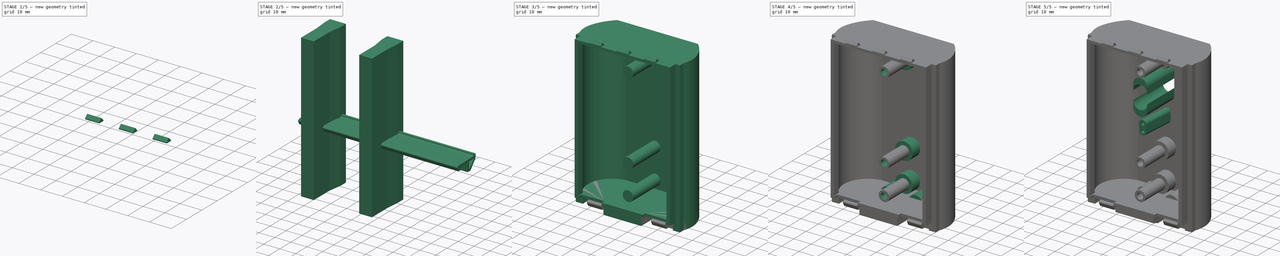
[diagram: build sequence overview — one tinted view per stage of 5, left to right]
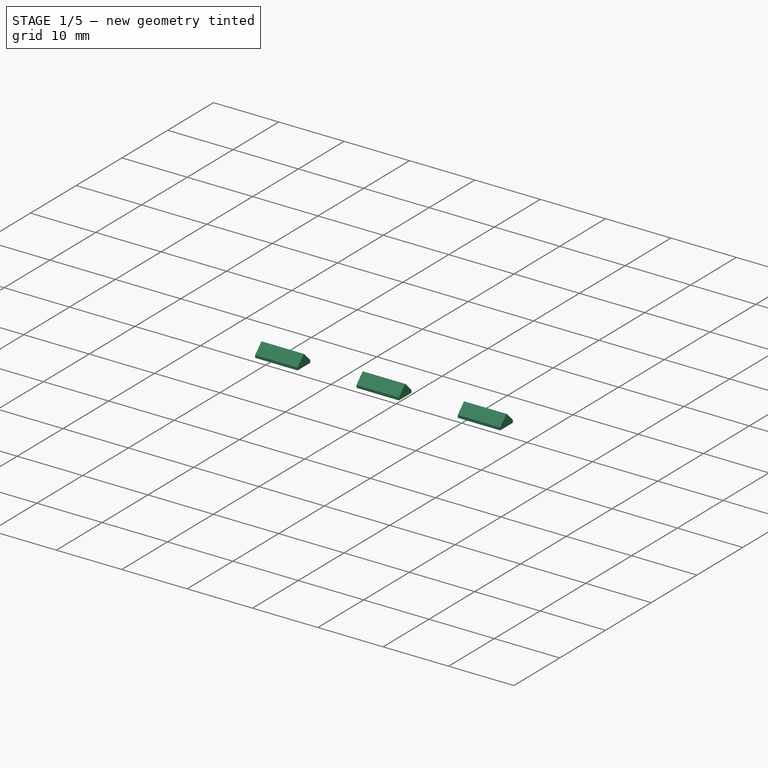
[diagram: stage 1 of 5 — iso view after this stage's code; geometry added in this stage tinted green]
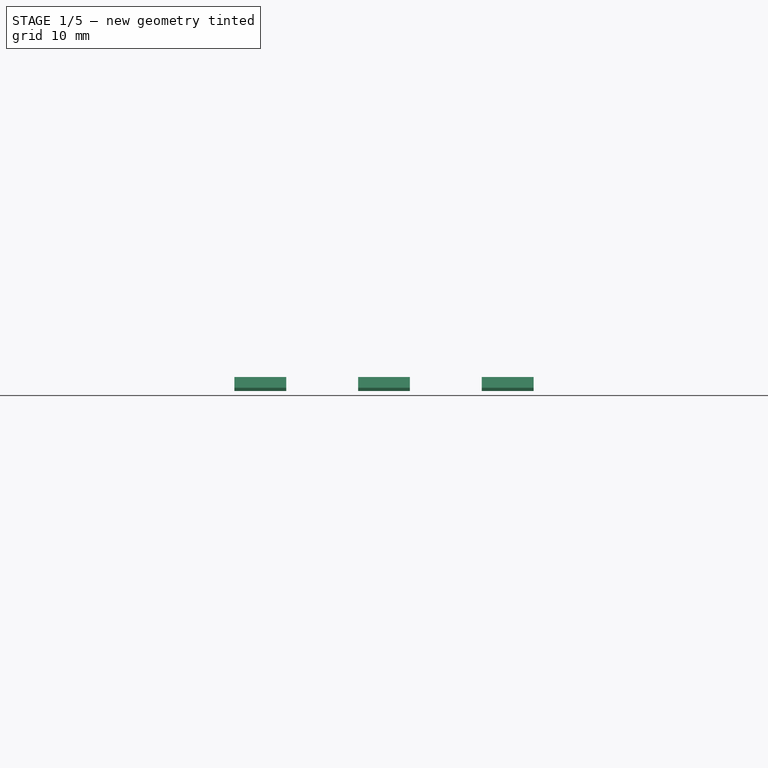
[diagram: stage 1 of 5 — front view after this stage's code; geometry added in this stage tinted green]
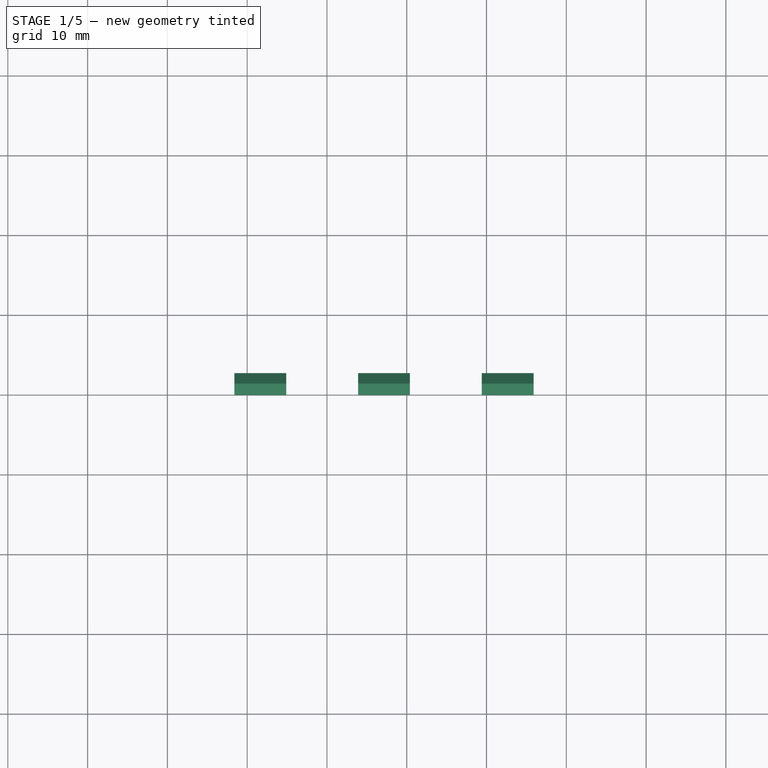
[diagram: stage 1 of 5 — top view after this stage's code; geometry added in this stage tinted green]
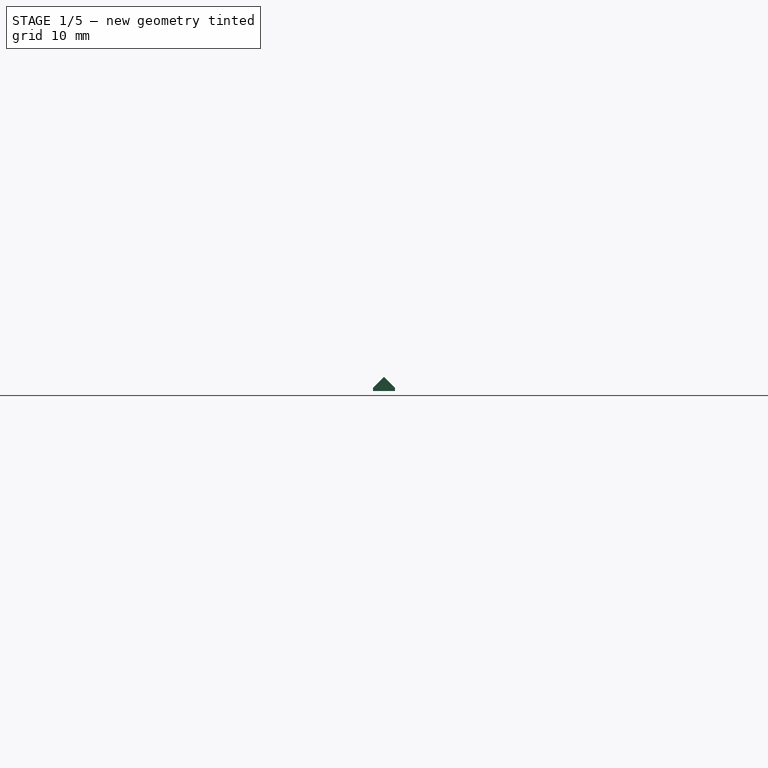
[diagram: stage 1 of 5 — right view after this stage's code; geometry added in this stage tinted green]
FCSTD DOCUMENT  (FreeCAD 0.19R24291 (Git))
Label: VX8PrintedCase
License: All rights reserved
LicenseURL: http://en.wikipedia.org/wiki/All_rights_reserved
objects: Sketcher::SketchObject×14, Part::Extrusion×6, PartDesign::Pad×6, Part::Fuse×4, PartDesign::Line×4, PartDesign::Hole×3, PartDesign::Pocket×2, Part::Chamfer×1, Part::MultiCommon×1, PartDesign::FeatureBase×1, PartDesign::Plane×1, PartDesign::Chamfer×1, PartDesign::Body×1, App::Part×1
note: 57 computed .brp shape members not serialized (recipe doc carries the construction recipe); baked Part::Feature solids carry a one-line shape summary decoded from their .brp

FEATURE [Sketcher::SketchObject] Sketch012
  FullyConstrained = true
  sketch-geometry (23):
    g0: GeomPoint X=27.15 Y=-0.0116512 Z=0
    g1: GeomPoint X=54.3 Y=-0.0233024 Z=0
    g2: Circle CenterX=12.15 CenterY=13.1 CenterZ=0 NormalX=0 NormalY=0 NormalZ=1 AngleXU=0 Radius=11.6
    g3: Circle CenterX=42.15 CenterY=13.1 CenterZ=0 NormalX=0 NormalY=0 NormalZ=1 AngleXU=0 Radius=11.6
    g4: LineSegment StartX=27.15 StartY=-0.0116512 StartZ=0 EndX=27.15 EndY=49.0884 EndZ=0
    g5: LineSegment StartX=0 StartY=0 StartZ=0 EndX=0 EndY=4.5 EndZ=0
    g6: LineSegment StartX=54.3 StartY=-0.0233024 StartZ=0 EndX=54.3 EndY=4.4767 EndZ=0
    g7: LineSegment StartX=0 StartY=4.5 StartZ=0 EndX=-2.5 EndY=4.5 EndZ=0
    g8: LineSegment StartX=54.3 StartY=4.4767 StartZ=0 EndX=56.8 EndY=4.4767 EndZ=0
    g9: LineSegment StartX=-2.5 StartY=4.5 StartZ=0 EndX=-2.5 EndY=7.5 EndZ=0
    g10: LineSegment StartX=56.8 StartY=4.4767 StartZ=0 EndX=56.8 EndY=7.5 EndZ=0
    g11: LineSegment StartX=0 StartY=0 StartZ=0 EndX=2 EndY=0 EndZ=0
    g12: LineSegment StartX=2 StartY=0 StartZ=0 EndX=2 EndY=3.75 EndZ=0
    g13: LineSegment StartX=54.3 StartY=-0.0233024 StartZ=0 EndX=52.3 EndY=0 EndZ=0
    g14: LineSegment StartX=52.3 StartY=0 StartZ=0 EndX=52.3 EndY=3.75 EndZ=0
    g15: LineSegment StartX=10.4902 StartY=26.8 StartZ=0 EndX=43.8098 EndY=26.8 EndZ=0
    g16: ArcOfCircle CenterX=42.15 CenterY=13.1 CenterZ=0 NormalX=0 NormalY=0 NormalZ=1 AngleXU=0 Radius=13.8002 StartAngle=5.53879 EndAngle=7.73341
    g17: ArcOfCircle CenterX=42.15 CenterY=13.1 CenterZ=0 NormalX=0 NormalY=0 NormalZ=1 AngleXU=0 Radius=15.6838 StartAngle=5.91807 EndAngle=6.53449
    g18: ArcOfCircle CenterX=12.15 CenterY=13.1 CenterZ=0 NormalX=0 NormalY=0 NormalZ=1 AngleXU=0 Radius=13.8002 StartAngle=1.69136 EndAngle=3.88599
    g19: ArcOfCircle CenterX=12.15 CenterY=13.1 CenterZ=0 NormalX=0 NormalY=0 NormalZ=1 AngleXU=0 Radius=15.6838 StartAngle=2.89029 EndAngle=3.50671
    g20: ArcOfCircle CenterX=21.55 CenterY=9.98835 CenterZ=0 NormalX=0 NormalY=0 NormalZ=1 AngleXU=0 Radius=25.5713 StartAngle=2.31496 EndAngle=2.86383
    g21: ArcOfCircle CenterX=32.75 CenterY=9.98835 CenterZ=0 NormalX=0 NormalY=0 NormalZ=1 AngleXU=0 Radius=25.5713 StartAngle=0.277758 EndAngle=0.826634
    g22: LineSegment StartX=4.22914 StartY=28.8 StartZ=0 EndX=50.0709 EndY=28.8 EndZ=0
  constraints (63):
    c: Symmetric(g1,g-1,g0)
    c: Radius(g2) = 11.6
    c: Equal(g2,g3)
    c: Coincident(g4,g0)
    c: Symmetric(g2,g3,g4)
    c: DistanceX(g2,g3) = 30
    c: DistanceY(g-1,g2) = 13.1
    c: Block(g4)
    c: PointOnObject(g5,g-2)
    c: Coincident(g5,g-1)
    c: Coincident(g6,g1)
    c: Vertical(g6)
    c: DistanceY(g5,g5) = 4.5
    c: Equal(g6,g5)
    c: Coincident(g7,g5)
    c: Horizontal(g7)
    c: DistanceX(g7,g7) = 2.5
    c: Coincident(g8,g6)
    c: Horizontal(g8)
    c: DistanceX(g8,g8) = 2.5
    c: Vertical(g7,g9)
    c: Vertical(g8,g10)
    c: Horizontal(g9,g10)
    c: Coincident(g9,g7)
    c: Coincident(g10,g8)
    c: DistanceY(g9,g9) = 3
    c: Coincident(g5,g11)
    c: PointOnObject(g11,g-1)
    c: Coincident(g11,g12)
    c: Vertical(g12)
    c: DistanceX(g5,g11) = 2
    c: Coincident(g6,g13)
    c: PointOnObject(g13,g-1)
    c: Coincident(g13,g14)
    c: Vertical(g14)
    c: Horizontal(g12,g14)
    c: DistanceY(g14,g14) = 3.75
    c: DistanceX(g11,g13) = 50.3
    c: Coincident(g16,g14)
    c: Coincident(g15,g16)
    c: Coincident(g17,g16)
    c: Coincident(g17,g10)
    c: Coincident(g18,g12)
    c: Coincident(g18,g15)
    c: Coincident(g19,g18)
    c: Coincident(g19,g9)
    c: Symmetric(g18,g16,g4)
    c: Coincident(g20,g19)
    c: Coincident(g22,g20)
    c: Coincident(g22,g21)
    c: Symmetric(g20,g21,g4)
    c: Coincident(g18,g2)
    c: Symmetric(g20,g21,g4)
    c: Symmetric(g15,g15,g4)
    c: DistanceY(g17) = 17
    c: DistanceY(g15,g20) = 2
    c: DistanceX(g4,g4) = 3.2e-15
    c: DistanceX(g20,g0) = 5.6
    c: DistanceY(g0,g20) = 10
    c: DistanceY(g5,g19) = 17
    c: Coincident(g21,g17)
    c: Distance(g5,g6) = 54.3
    c: DistanceY(g5,g15) = 26.8
FEATURE [Part::Extrusion] Extrude008
  Base = -> Sketch012
  Dir = (0,0,1)
  DirMode = 2
  FaceMakerClass = Part::FaceMakerBullseye
  LengthFwd = 80
  LengthRev = 0
  Solid = true
  Symmetric = false
FEATURE [Sketcher::SketchObject] Sketch013
  ExternalGeometry = -> [Extrude008]
  FullyConstrained = true
  MapMode = 5
  Placement = pos=(0,0,80) rot=(0,0,1;0rad)
  Support = -> [Extrude008]
  sketch-geometry (12):
    g0: LineSegment StartX=-2.5 StartY=7.5 StartZ=0 EndX=-2.5 EndY=4.5 EndZ=0
    g1: LineSegment StartX=-2.5 StartY=4.5 StartZ=0 EndX=0 EndY=4.5 EndZ=0
    g2: LineSegment StartX=0 StartY=4.5 StartZ=0 EndX=0 EndY=0 EndZ=0
    g3: LineSegment StartX=0 StartY=0 StartZ=0 EndX=54.3 EndY=-0.0233024 EndZ=0
    g4: LineSegment StartX=54.3 StartY=-0.0233024 StartZ=0 EndX=54.3 EndY=4.4767 EndZ=0
    g5: LineSegment StartX=54.3 StartY=4.4767 StartZ=0 EndX=56.8 EndY=4.4767 EndZ=0
    g6: LineSegment StartX=56.8 StartY=4.4767 StartZ=0 EndX=56.8 EndY=7.5 EndZ=0
    g7: LineSegment StartX=50.0709 StartY=28.8 StartZ=0 EndX=4.22914 EndY=28.8 EndZ=0
    g8: ArcOfCircle CenterX=12.15 CenterY=13.1 CenterZ=0 NormalX=0 NormalY=0 NormalZ=1 AngleXU=0 Radius=15.6838 StartAngle=2.89029 EndAngle=3.50671
    g9: ArcOfCircle CenterX=42.15 CenterY=13.1 CenterZ=0 NormalX=0 NormalY=0 NormalZ=1 AngleXU=0 Radius=15.6838 StartAngle=5.91807 EndAngle=6.53449
    g10: ArcOfCircle CenterX=32.75 CenterY=9.98835 CenterZ=0 NormalX=0 NormalY=0 NormalZ=1 AngleXU=0 Radius=25.5713 StartAngle=0.277758 EndAngle=0.826634
    g11: ArcOfCircle CenterX=21.55 CenterY=9.98835 CenterZ=0 NormalX=0 NormalY=0 NormalZ=1 AngleXU=0 Radius=25.5713 StartAngle=2.31496 EndAngle=2.86383
  constraints (28):
    c: Coincident(g-11,g0)
    c: Coincident(g0,g-12)
    c: Coincident(g0,g1)
    c: Coincident(g1,g-13)
    c: Coincident(g1,g2)
    c: Coincident(g2,g-1)
    c: Coincident(g2,g3)
    c: Coincident(g3,g-9)
    c: Coincident(g3,g4)
    c: Coincident(g4,g-9)
    c: Coincident(g4,g5)
    c: Coincident(g5,g-8)
    c: Coincident(g5,g6)
    c: Coincident(g6,g-7)
    c: Coincident(g-5,g7)
    c: Coincident(g7,g-4)
    c: Coincident(g8,g-10)
    c: Coincident(g8,g0)
    c: Coincident(g8,g-10)
    c: Coincident(g9,g-6)
    c: Coincident(g9,g6)
    c: Coincident(g9,g-6)
    c: Coincident(g10,g-5)
    c: Coincident(g10,g9)
    c: Coincident(g10,g7)
    c: Coincident(g11,g-3)
    c: Coincident(g11,g8)
    c: Coincident(g11,g7)
FEATURE [Part::Extrusion] Extrude009
  Base = -> Sketch013
  Dir = (0,0,1)
  DirMode = 2
  FaceMakerClass = Part::FaceMakerBullseye
  LengthFwd = 0
  LengthRev = 1.5
  Solid = true
  Symmetric = false
FEATURE [Part::Fuse] Fusion004
  Base = -> Extrude008
  Tool = -> Extrude009
FEATURE [Sketcher::SketchObject] Sketch014
  ExternalGeometry = -> [Fusion004]
  FullyConstrained = true
  MapMode = 5
  Placement = pos=(0,0,80) rot=(0,0,1;0rad)
  Support = -> [Fusion004]
  sketch-geometry (15):
    g0: GeomPoint X=27.15 Y=0 Z=0
    g1: LineSegment StartX=23.9 StartY=0 StartZ=0 EndX=30.4 EndY=0 EndZ=0
    g2: LineSegment StartX=30.4 StartY=0 StartZ=0 EndX=30.4 EndY=2.75 EndZ=0
    g3: LineSegment StartX=30.4 StartY=2.75 StartZ=0 EndX=23.9 EndY=2.75 EndZ=0
    g4: LineSegment StartX=23.9 StartY=2.75 StartZ=0 EndX=23.9 EndY=0 EndZ=0
    g5: LineSegment StartX=8.4 StartY=0 StartZ=0 EndX=14.9 EndY=0 EndZ=0
    g6: LineSegment StartX=14.9 StartY=0 StartZ=0 EndX=14.9 EndY=2.75 EndZ=0
    g7: LineSegment StartX=14.9 StartY=2.75 StartZ=0 EndX=8.4 EndY=2.75 EndZ=0
    g8: LineSegment StartX=8.4 StartY=2.75 StartZ=0 EndX=8.4 EndY=0 EndZ=0
    g9: LineSegment StartX=39.4 StartY=-1.08e-14 StartZ=0 EndX=45.9 EndY=-1.08e-14 EndZ=0
    g10: LineSegment StartX=45.9 StartY=-1.08e-14 StartZ=0 EndX=45.9 EndY=2.75 EndZ=0
    g11: LineSegment StartX=45.9 StartY=2.75 StartZ=0 EndX=39.4 EndY=2.75 EndZ=0
    g12: LineSegment StartX=39.4 StartY=2.75 StartZ=0 EndX=39.4 EndY=-1.07e-14 EndZ=0
    g13: GeomPoint X=11.65 Y=0 Z=0
    g14: GeomPoint X=27.15 Y=0 Z=0
  constraints (38):
    c: PointOnObject(g0,g-1)
    c: Coincident(g1,g2)
    c: Coincident(g2,g3)
    c: Coincident(g3,g4)
    c: Coincident(g4,g1)
    c: Horizontal(g1)
    c: Horizontal(g3)
    c: Vertical(g2)
    c: Vertical(g4)
    c: Coincident(g5,g6)
    c: Coincident(g6,g7)
    c: Coincident(g7,g8)
    c: Coincident(g8,g5)
    c: Horizontal(g5)
    c: Horizontal(g7)
    c: Vertical(g6)
    c: Vertical(g8)
    c: PointOnObject(g5,g-1)
    c: Coincident(g9,g10)
    c: Coincident(g10,g11)
    c: Coincident(g11,g12)
    c: Coincident(g12,g9)
    c: Horizontal(g9)
    c: Horizontal(g11)
    c: Vertical(g10)
    c: Vertical(g12)
    c: Equal(g7,g3)
    c: Equal(g11,g3)
    c: Equal(g6,g4)
    c: Equal(g2,g12)
    c: DistanceY(g6,g6) = 2.75
    c: DistanceX(g7,g7) = 6.5
    c: Symmetric(g5,g9,g0)
    c: Symmetric(g1,g1,g0)
    c: Symmetric(g5,g5,g13)
    c: DistanceX(g13,g0) = 15.5
    c: Vertical(g14,g0)
    c: Symmetric(g-4,g-6,g14)
FEATURE [Part::Extrusion] Extrude010
  Base = -> Sketch014
  Dir = (0,0,1)
  DirMode = 2
  FaceMakerClass = Part::FaceMakerBullseye
  LengthFwd = 1.75
  LengthRev = 0
  Solid = true
  Symmetric = false
FEATURE [Part::Chamfer] Chamfer002
  Base = -> Extrude010
  Edges = 6 edges r=1.35: [Edge4,Edge10,Edge16,Edge22,Edge28,Edge34]
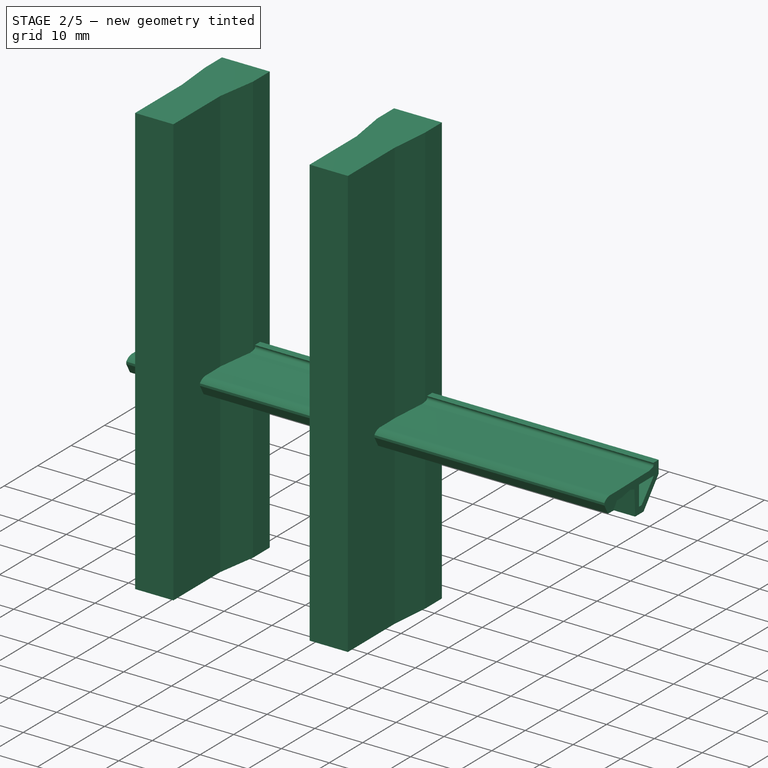
[diagram: stage 2 of 5 — iso view after this stage's code; geometry added in this stage tinted green]
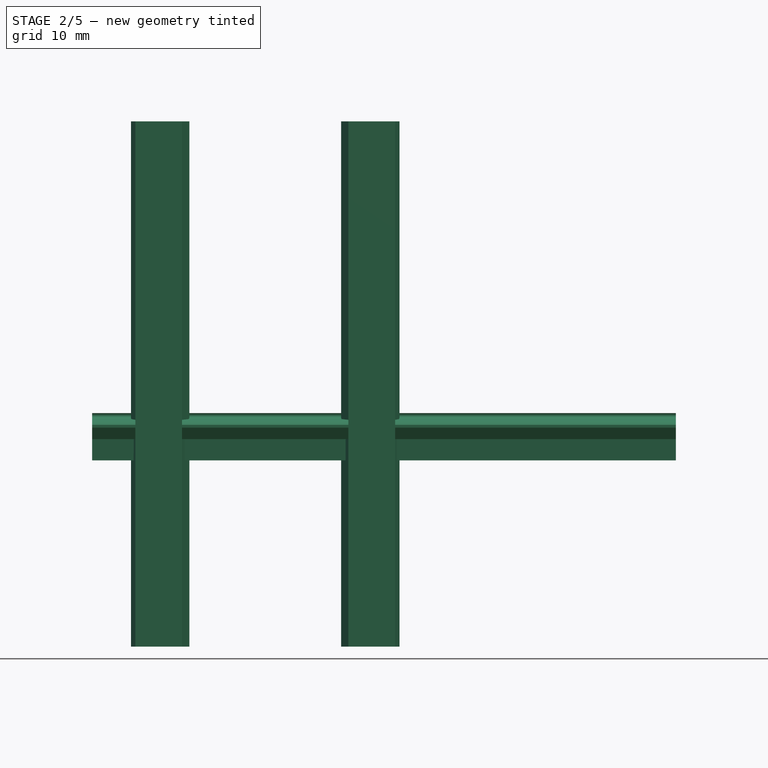
[diagram: stage 2 of 5 — front view after this stage's code; geometry added in this stage tinted green]
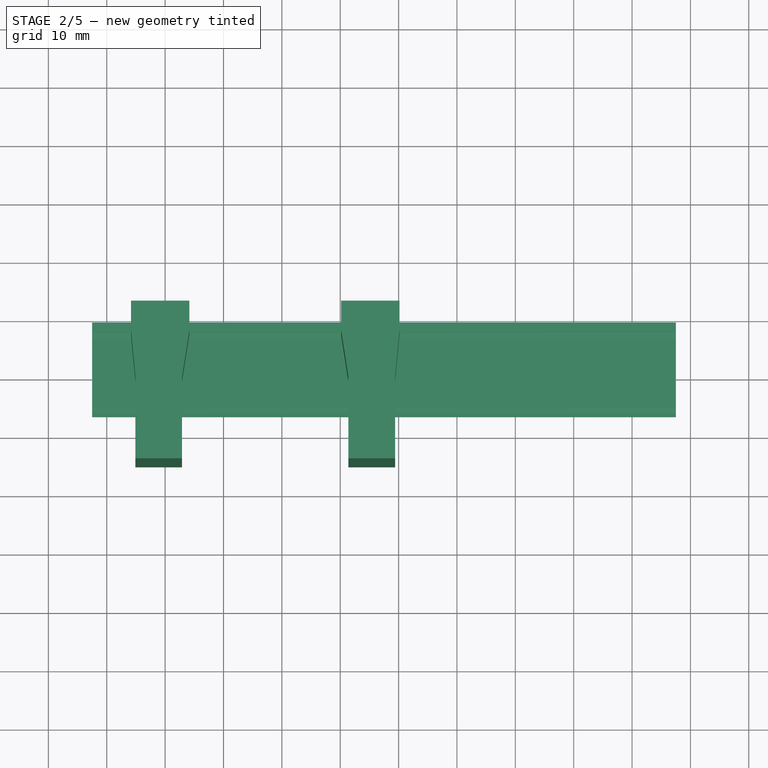
[diagram: stage 2 of 5 — top view after this stage's code; geometry added in this stage tinted green]
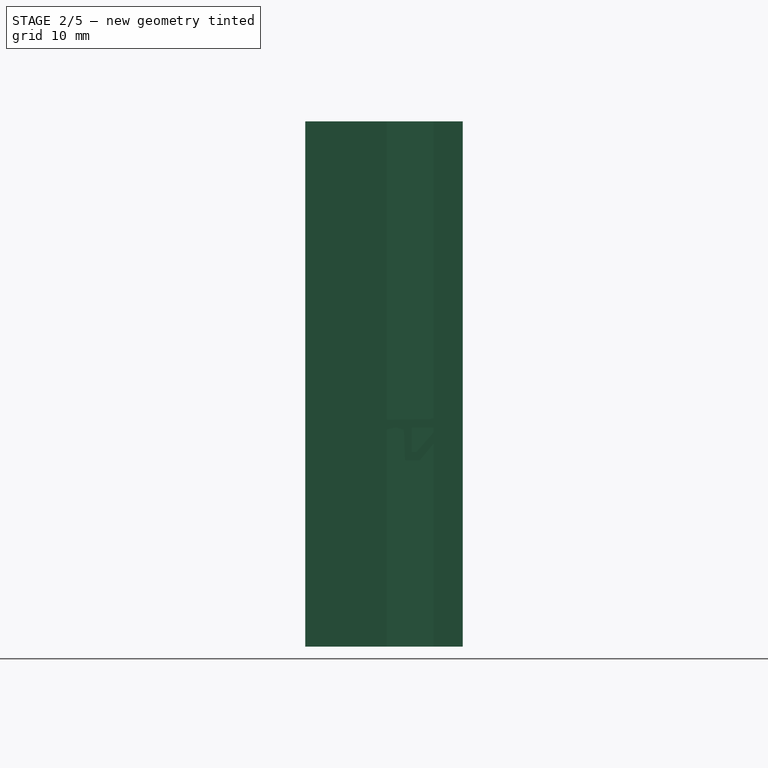
[diagram: stage 2 of 5 — right view after this stage's code; geometry added in this stage tinted green]
FEATURE [Part::Fuse] Fusion005
  Base = -> Fusion004
  Tool = -> Chamfer002
FEATURE [Sketcher::SketchObject] Sketch015
  ExternalGeometry = -> [Fusion005]
  FullyConstrained = true
  MapMode = 5
  Placement = pos=(0,0,0) rot=(1,0,0;3.14159rad)
  Support = -> [Fusion005]
  sketch-geometry (25):
    g0: LineSegment StartX=2.5 StartY=0 StartZ=0 EndX=2.5 EndY=-2 EndZ=0
    g1: LineSegment StartX=15.5 StartY=-2 StartZ=0 EndX=15.5 EndY=0 EndZ=0
    g2: LineSegment StartX=38.8 StartY=-0.01 StartZ=0 EndX=38.8 EndY=-2.01 EndZ=0
    g3: LineSegment StartX=51.8 StartY=-2.01 StartZ=0 EndX=51.8 EndY=-0.01 EndZ=0
    g4: LineSegment StartX=2.5 StartY=-2 StartZ=0 EndX=15.5 EndY=-2 EndZ=0
    g5: LineSegment StartX=38.8 StartY=-2.01 StartZ=0 EndX=51.8 EndY=-2.01 EndZ=0
    g6: LineSegment StartX=15.5 StartY=0 StartZ=0 EndX=17.5 EndY=0 EndZ=0
    g7: LineSegment StartX=17.5 StartY=0 StartZ=0 EndX=17.5 EndY=-0.01 EndZ=0
    g8: LineSegment StartX=17.5 StartY=-0.01 StartZ=0 EndX=36.8 EndY=-0.01 EndZ=0
    g9: LineSegment StartX=36.8 StartY=-0.01 StartZ=0 EndX=38.8 EndY=-0.01 EndZ=0
    g10: GeomPoint X=27.15 Y=-4.48835 Z=0
    g11: GeomPoint X=27.15 Y=-0.01 Z=0
    g12: LineSegment StartX=2.5 StartY=0 StartZ=0 EndX=0 EndY=0 EndZ=0
    g13: LineSegment StartX=0 StartY=0 StartZ=0 EndX=0 EndY=-4.5 EndZ=0
    g14: LineSegment StartX=0 StartY=-4.5 StartZ=0 EndX=-2.5 EndY=-4.5 EndZ=0
    g15: LineSegment StartX=-2.5 StartY=-4.5 StartZ=0 EndX=-2.5 EndY=-7.5 EndZ=0
    g16: LineSegment StartX=51.8 StartY=-0.01 StartZ=0 EndX=54.3 EndY=0.0233024 EndZ=0
    g17: LineSegment StartX=54.3 StartY=0.0233024 StartZ=0 EndX=54.3 EndY=-4.4767 EndZ=0
    g18: LineSegment StartX=54.3 StartY=-4.4767 StartZ=0 EndX=56.8 EndY=-4.4767 EndZ=0
    g19: LineSegment StartX=56.8 StartY=-4.4767 StartZ=0 EndX=56.8 EndY=-7.5 EndZ=0
    g20: LineSegment StartX=4.22914 StartY=-28.8 StartZ=0 EndX=50.0709 EndY=-28.8 EndZ=0
    g21: ArcOfCircle CenterX=12.15 CenterY=-13.1 CenterZ=0 NormalX=0 NormalY=0 NormalZ=1 AngleXU=0 Radius=15.6838 StartAngle=2.77648 EndAngle=3.39289
    g22: ArcOfCircle CenterX=21.55 CenterY=-9.98835 CenterZ=0 NormalX=0 NormalY=0 NormalZ=1 AngleXU=0 Radius=25.5713 StartAngle=3.41935 EndAngle=3.96823
    g23: ArcOfCircle CenterX=32.75 CenterY=-9.98835 CenterZ=0 NormalX=0 NormalY=0 NormalZ=1 AngleXU=0 Radius=25.5713 StartAngle=5.45655 EndAngle=6.00543
    g24: ArcOfCircle CenterX=42.15 CenterY=-13.1 CenterZ=0 NormalX=0 NormalY=0 NormalZ=1 AngleXU=0 Radius=15.6838 StartAngle=6.03188 EndAngle=6.6483
  constraints (63):
    c: PointOnObject(g0,g-1)
    c: Vertical(g0)
    c: Vertical(g1)
    c: Coincident(g4,g0)
    c: Coincident(g4,g1)
    c: Coincident(g5,g2)
    c: Coincident(g5,g3)
    c: Horizontal(g5)
    c: Vertical(g2)
    c: Vertical(g3)
    c: Horizontal(g4)
    c: Equal(g1,g2)
    c: Equal(g4,g5)
    c: DistanceX(g-1,g0) = 2.5
    c: DistanceX(g4,g4) = 13
    c: Equal(g0,g1)
    c: Equal(g2,g3)
    c: DistanceY(g2,g2) = 2
    c: Coincident(g1,g6)
    c: Horizontal(g6)
    c: Coincident(g6,g7)
    c: Vertical(g7)
    c: Coincident(g7,g8)
    c: Horizontal(g8)
    c: Coincident(g9,g2)
    c: DistanceX(g6,g6) = 2
    c: Equal(g6,g9)
    c: DistanceY(g7,g7) = 0.01
    c: Horizontal(g9)
    c: Vertical(g10,g11)
    c: Symmetric(g7,g8,g11)
    c: Symmetric(g-8,g-11,g10)
    c: Coincident(g9,g8)
    c: Coincident(g0,g12)
    c: Coincident(g12,g-1)
    c: Coincident(g13,g12)
    c: Coincident(g13,g-8)
    c: Coincident(g14,g13)
    c: Coincident(g14,g-7)
    c: Coincident(g15,g14)
    c: Coincident(g15,g-15)
    c: Coincident(g16,g3)
    c: Coincident(g16,g-10)
    c: Coincident(g17,g16)
    c: Coincident(g17,g-11)
    c: Coincident(g18,g17)
    c: Coincident(g18,g-12)
    c: Coincident(g19,g18)
    c: Coincident(g19,g-13)
    c: Coincident(g20,g-16)
    c: Coincident(g20,g-14)
    c: Coincident(g21,g-15)
    c: Coincident(g21,g15)
    c: Coincident(g21,g-16)
    c: Coincident(g22,g-16)
    c: Coincident(g22,g21)
    c: Coincident(g22,g20)
    c: Coincident(g23,g-14)
    c: Coincident(g23,g20)
    c: Coincident(g23,g-14)
    c: Coincident(g24,g-13)
    c: Coincident(g24,g23)
    c: Coincident(g24,g19)
FEATURE [Part::Extrusion] Extrude011
  Base = -> Sketch015
  Dir = (0,0,-1)
  DirMode = 2
  FaceMakerClass = Part::FaceMakerBullseye
  LengthFwd = 1.5
  LengthRev = 0
  Solid = true
  Symmetric = false
FEATURE [Sketcher::SketchObject] Sketch016
  ExternalGeometry = -> [Extrude011]
  FullyConstrained = false
  MapMode = 5
  Placement = pos=(-2.5,0,0) rot=(0.57735,-0.57735,-0.57735;2.0944rad)
  sketch-geometry (25):
    g0: LineSegment StartX=-6.68838 StartY=-4.452 StartZ=0 EndX=-5.60952 EndY=-5.952 EndZ=0
    g1: LineSegment StartX=-6.68838 StartY=-4.452 StartZ=0 EndX=-8.17853 EndY=-4.452 EndZ=0
    g2: LineSegment StartX=-8.17853 StartY=-4.452 StartZ=0 EndX=-10.599 EndY=-3.93338 EndZ=0
    g3: LineSegment StartX=-10.599 StartY=-3.93338 StartZ=0 EndX=-11.9023 EndY=-4.36864 EndZ=0
    g4: LineSegment StartX=-11.9023 StartY=-4.36864 StartZ=0 EndX=-12.1136 EndY=-9.57904 EndZ=0
    g5: LineSegment StartX=-14.6136 StartY=-9.57904 StartZ=0 EndX=-12.1136 EndY=-9.57904 EndZ=0
    g6: ArcOfCircle CenterX=-17.1615 CenterY=-1.80759 CenterZ=0 NormalX=0 NormalY=0 NormalZ=1 AngleXU=0 Radius=0.485399 StartAngle=2.45527 EndAngle=4.45333
    g7: LineSegment StartX=-4.63815 StartY=-2.66879 StartZ=0 EndX=-7.13138 EndY=-2.66879 EndZ=0
    g8: LineSegment StartX=-7.13138 StartY=-2.66879 StartZ=0 EndX=-15.0358 EndY=-2.5268 EndZ=0
    g9: LineSegment StartX=-15.0358 StartY=-2.5268 StartZ=0 EndX=-16.2858 EndY=-2.5268 EndZ=0
    g10: LineSegment StartX=-16.2858 StartY=-2.5268 StartZ=0 EndX=-17.2858 EndY=-2.2768 EndZ=0
    g11: ArcOfCircle CenterX=-4.63815 CenterY=-4.83333 CenterZ=0 NormalX=0 NormalY=0 NormalZ=1 AngleXU=0 Radius=2.16455 StartAngle=0.657266 EndAngle=1.5708
    g12: GeomPoint X=-5.01 Y=-2.66879 Z=0
    g13: LineSegment StartX=-5.60952 StartY=-5.952 StartZ=0 EndX=-4.02461 EndY=-5.952 EndZ=0
    g14: LineSegment StartX=-4.02461 StartY=-5.952 StartZ=0 EndX=-2.92455 EndY=-3.97167 EndZ=0
    g15: LineSegment StartX=-2.92455 StartY=-3.97167 StartZ=0 EndX=-2.92455 EndY=-3.51089 EndZ=0
    g16: LineSegment StartX=-19.1251 StartY=-1.5 StartZ=0 EndX=-19.1251 EndY=-2.90579 EndZ=0
    g17: LineSegment StartX=-19.1251 StartY=-1.5 StartZ=0 EndX=-17.537 EndY=-1.5 EndZ=0
    g18: LineSegment StartX=-19.1251 StartY=-2.90579 StartZ=0 EndX=-19.1251 EndY=-4.15833 EndZ=0
    g19: LineSegment StartX=-19.1251 StartY=-4.15833 StartZ=0 EndX=-14.6136 EndY=-9.57904 EndZ=0
    g20: LineSegment StartX=-17.4562 StartY=-4.27512 StartZ=0 EndX=-17.6399 EndY=-3.9606 EndZ=0
    g21: LineSegment StartX=-17.6399 StartY=-3.9606 StartZ=0 EndX=-13.2535 EndY=-3.9606 EndZ=0
    g22: LineSegment StartX=-13.2535 StartY=-3.9606 StartZ=0 EndX=-13.2535 EndY=-8.1494 EndZ=0
    g23: LineSegment StartX=-13.2535 StartY=-8.1494 StartZ=0 EndX=-14.0576 EndY=-8.1494 EndZ=0
    g24: LineSegment StartX=-14.0576 StartY=-8.1494 StartZ=0 EndX=-17.4562 EndY=-4.27512 EndZ=0
  constraints (46):
    c: Horizontal(g1)
    c: Coincident(g1,g2)
    c: Coincident(g2,g3)
    c: Coincident(g3,g4)
    c: Coincident(g5,g4)
    c: Horizontal(g5)
    c: DistanceX(g5,g5) = 2.5
    c: Horizontal(g7)
    c: Coincident(g7,g8)
    c: Coincident(g8,g9)
    c: Horizontal(g9)
    c: Coincident(g9,g10)
    c: Coincident(g10,g6)
    c: DistanceX(g9,g9) = 1.25
    c: DistanceX(g6,g9) = 1
    c: DistanceX(g12,g-3) = 3
    c: DistanceY(g9,g6) = 0.25
    c: Horizontal(g16,g6)
    c: Horizontal(g6,g-3)
    c: PointOnObject(g12,g7)
    c: Tangent(g7,g11) = -1.5708
    c: DistanceY(g0,g0) = 1.5
    c: Coincident(g0,g13)
    c: Horizontal(g13)
    c: Coincident(g13,g14)
    c: Coincident(g14,g15)
    c: Coincident(g15,g11)
    c: Vertical(g15)
    c: Coincident(g1,g0)
    c: DistanceX(g2,g-3) = 8.589
    c: DistanceY(g13,g-3) = 4.452
    c: Coincident(g17,g16)
    c: Coincident(g17,g6)
    c: Vertical(g16)
    c: Coincident(g16,g18)
    c: Vertical(g18)
    c: Coincident(g18,g19)
    c: Coincident(g19,g5)
    c: Coincident(g20,g21)
    c: Coincident(g21,g22)
    c: Coincident(g22,g23)
    c: Horizontal(g23)
    c: Coincident(g23,g24)
    c: Coincident(g24,g20)
    c: Vertical(g22)
    c: Horizontal(g21)
FEATURE [Part::Extrusion] Extrude012
  Base = -> Sketch016
  Dir = (-1,0,0)
  DirMode = 2
  FaceMakerClass = Part::FaceMakerBullseye
  LengthFwd = 0
  LengthRev = 100
  Solid = true
  Symmetric = false
FEATURE [Part::Fuse] Fusion006
  Base = -> Fusion005
  Refine = true
  Tool = -> Extrude011
FEATURE [Sketcher::SketchObject] Sketch017
  ExternalGeometry = -> [Extrude011,Fusion006]
  FullyConstrained = false
  MapMode = 5
  Placement = pos=(0,0,-1.5) rot=(1,0,0;3.14159rad)
  Support = -> [Fusion006]
  sketch-geometry (22):
    g0: LineSegment StartX=4.9 StartY=5 StartZ=0 EndX=12.9 EndY=5 EndZ=0
    g1: LineSegment StartX=12.9 StartY=5 StartZ=0 EndX=12.9 EndY=-9 EndZ=0
    g2: LineSegment StartX=4.9 StartY=-9 StartZ=0 EndX=4.9 EndY=5 EndZ=0
    g3: LineSegment StartX=41.4 StartY=5 StartZ=0 EndX=49.4 EndY=5 EndZ=0
    g4: LineSegment StartX=49.4 StartY=5 StartZ=0 EndX=49.4 EndY=-9 EndZ=0
    g5: LineSegment StartX=41.4 StartY=-9 StartZ=0 EndX=41.4 EndY=5 EndZ=0
    g6: GeomPoint X=27.15 Y=0 Z=0
    g7: GeomPoint X=27.15 Y=5 Z=0
    g8: LineSegment StartX=12.9 StartY=-9 StartZ=0 EndX=14.15 EndY=-17 EndZ=0
    g9: LineSegment StartX=14.15 StartY=-17 StartZ=0 EndX=14.15 EndY=-22 EndZ=0
    g10: LineSegment StartX=14.15 StartY=-22 StartZ=0 EndX=4.15 EndY=-22 EndZ=0
    g11: LineSegment StartX=4.15 StartY=-22 StartZ=0 EndX=4.15 EndY=-17 EndZ=0
    g12: LineSegment StartX=4.15 StartY=-17 StartZ=0 EndX=4.9 EndY=-9 EndZ=0
    g13: LineSegment StartX=41.4 StartY=-9 StartZ=0 EndX=40.15 EndY=-17 EndZ=0
    g14: LineSegment StartX=40.15 StartY=-17 StartZ=0 EndX=40.15 EndY=-22 EndZ=0
    g15: LineSegment StartX=40.15 StartY=-22 StartZ=0 EndX=50.15 EndY=-22 EndZ=0
    g16: LineSegment StartX=50.15 StartY=-22 StartZ=0 EndX=50.15 EndY=-17 EndZ=0
    g17: LineSegment StartX=50.15 StartY=-17 StartZ=0 EndX=49.4 EndY=-9 EndZ=0
    g18: GeomPoint X=27.15 Y=-17 Z=0
    g19: GeomPoint X=27.15 Y=-22 Z=0
    g20: GeomPoint X=27.15 Y=-4.48835 Z=0
    g21: GeomPoint X=27.15 Y=-22.9 Z=0
  constraints (52):
    c: Coincident(g0,g1)
    c: Coincident(g2,g0)
    c: Horizontal(g0)
    c: Vertical(g1)
    c: Vertical(g2)
    c: Coincident(g3,g4)
    c: Coincident(g5,g3)
    c: Horizontal(g3)
    c: Vertical(g4)
    c: Vertical(g5)
    c: Equal(g0,g3)
    c: Equal(g1,g5)
    c: Horizontal(g0,g3)
    c: DistanceY(g0,g-1) = -5
    c: DistanceX(g2,g1) = 8
    c: Vertical(g7,g6)
    c: Symmetric(g0,g3,g7)
    c: DistanceX(g1,g5) = 28.5
    c: Coincident(g1,g8)
    c: Coincident(g8,g9)
    c: Vertical(g9)
    c: Coincident(g9,g10)
    c: Horizontal(g10)
    c: Coincident(g10,g11)
    c: Vertical(g11)
    c: Coincident(g11,g12)
    c: Coincident(g12,g2)
    c: Coincident(g5,g13)
    c: Coincident(g13,g14)
    c: Vertical(g14)
    c: Coincident(g14,g15)
    c: Coincident(g15,g16)
    c: Coincident(g16,g17)
    c: Coincident(g17,g4)
    c: Vertical(g18,g6)
    c: Symmetric(g10,g15,g19)
    c: Symmetric(g11,g16,g18)
    c: Symmetric(g8,g13,g18)
    c: Symmetric(g9,g14,g19)
    c: Horizontal(g9,g14)
    c: Equal(g12,g17)
    c: DistanceX(g9,g14) = 26
    c: DistanceX(g10,g9) = 10
    c: DistanceY(g10,g11) = 5
    c: DistanceY(g11,g2) = 8
    c: Horizontal(g2,g1)
    c: Horizontal(g5,g4)
    c: DistanceY(g10,g-1) = 22
    c: Horizontal(g8,g13)
    c: Vertical(g20,g19)
    c: Vertical(g21,g19)
    c: Symmetric(g-6,g-7,g20)
FEATURE [Part::Extrusion] Extrude013
  Base = -> Sketch017
  Dir = (0,0,-1)
  DirMode = 2
  FaceMakerClass = Part::FaceMakerBullseye
  LengthFwd = 40
  LengthRev = 50
  Solid = true
  Symmetric = false
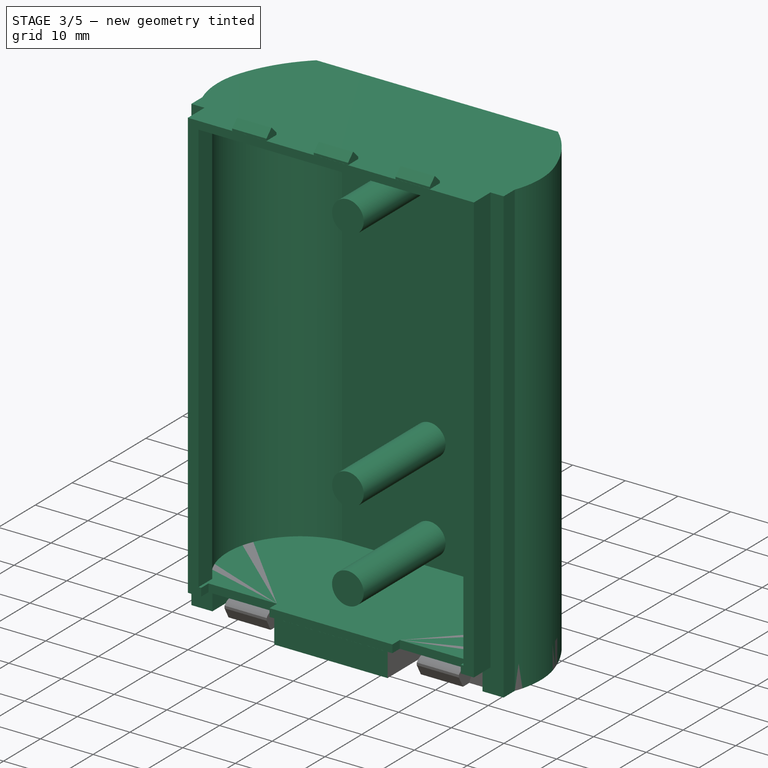
[diagram: stage 3 of 5 — iso view after this stage's code; geometry added in this stage tinted green]
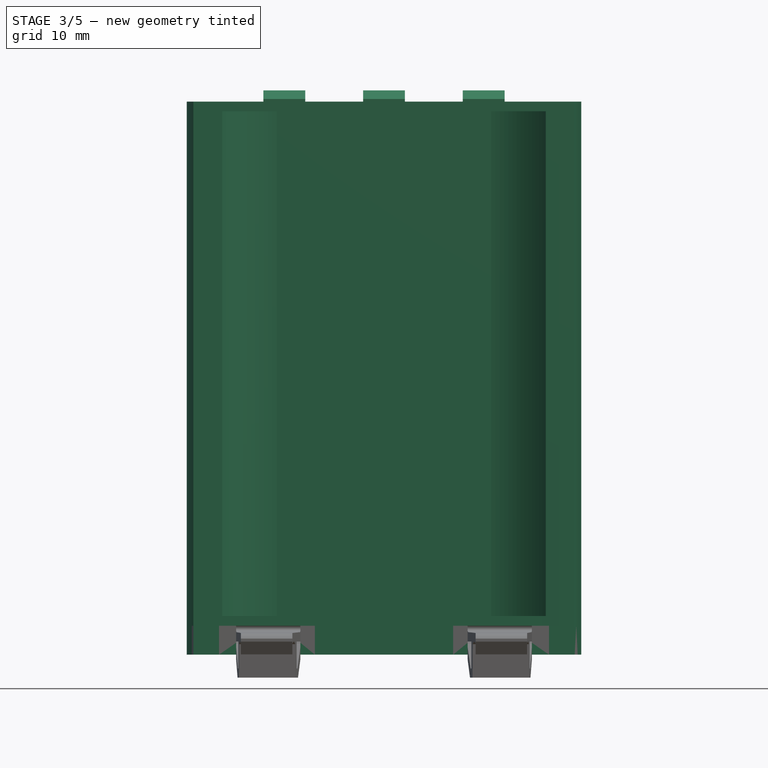
[diagram: stage 3 of 5 — front view after this stage's code; geometry added in this stage tinted green]
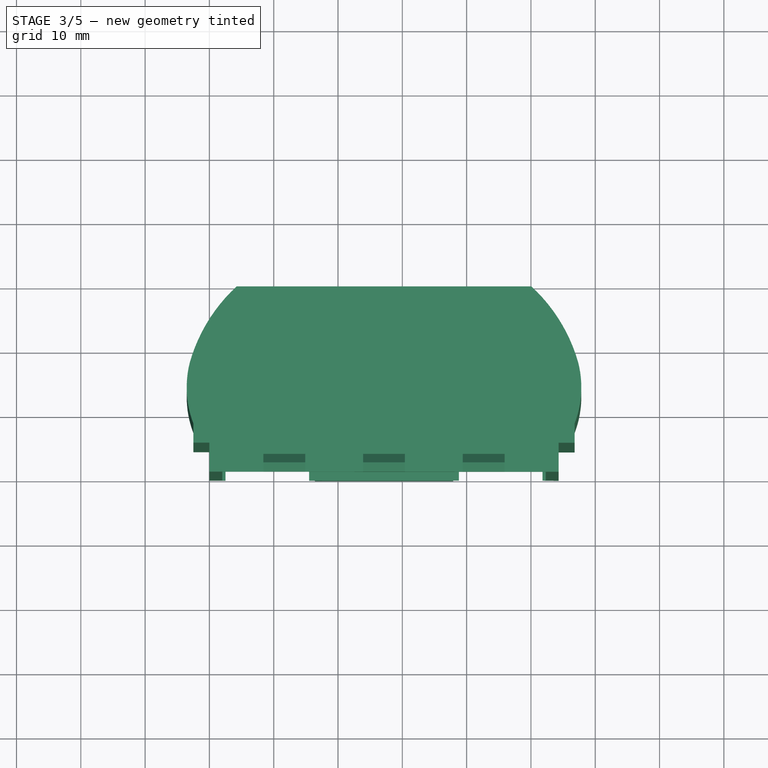
[diagram: stage 3 of 5 — top view after this stage's code; geometry added in this stage tinted green]
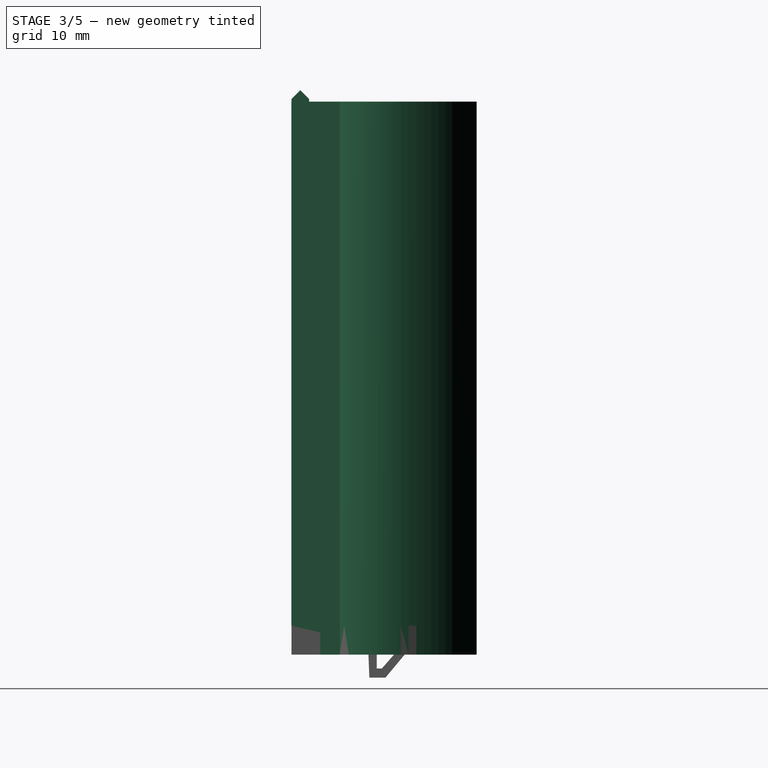
[diagram: stage 3 of 5 — right view after this stage's code; geometry added in this stage tinted green]
FEATURE [Part::MultiCommon] Common001
  Shapes = -> [Extrude013,Extrude012]
FEATURE [Part::Fuse] Fusion007
  Base = -> Common001
  Tool = -> Fusion006
FEATURE [PartDesign::FeatureBase] BaseFeature001
  BaseFeature = -> Fusion007
FEATURE [Sketcher::SketchObject] Sketch018
  ExternalGeometry = -> [BaseFeature001]
  FullyConstrained = true
  MapMode = 5
  Placement = pos=(0,0,-1.5) rot=(1,0,0;3.14159rad)
  Support = -> [BaseFeature001]
  sketch-geometry (16):
    g0: LineSegment StartX=4.22914 StartY=-28.8 StartZ=0 EndX=50.0709 EndY=-28.8 EndZ=0
    g1: LineSegment StartX=16.4 StartY=-19.1251 StartZ=0 EndX=16.4 EndY=0 EndZ=0
    g2: LineSegment StartX=16.4 StartY=0 StartZ=0 EndX=37.9 EndY=0 EndZ=0
    g3: LineSegment StartX=37.9 StartY=0 StartZ=0 EndX=37.9 EndY=-19.1251 EndZ=0
    g4: ArcOfCircle CenterX=32.75 CenterY=-9.98835 CenterZ=0 NormalX=0 NormalY=0 NormalZ=1 AngleXU=0 Radius=25.5713 StartAngle=5.45655 EndAngle=6.00543
    g5: ArcOfCircle CenterX=21.55 CenterY=-9.98835 CenterZ=0 NormalX=0 NormalY=0 NormalZ=1 AngleXU=0 Radius=25.5713 StartAngle=3.41935 EndAngle=3.96823
    g6: ArcOfCircle CenterX=12.15 CenterY=-13.1 CenterZ=0 NormalX=0 NormalY=0 NormalZ=1 AngleXU=0 Radius=15.6838 StartAngle=2.77648 EndAngle=3.39289
    g7: ArcOfCircle CenterX=42.15 CenterY=-13.1 CenterZ=0 NormalX=0 NormalY=0 NormalZ=1 AngleXU=0 Radius=15.6838 StartAngle=6.03188 EndAngle=6.6483
    g8: LineSegment StartX=56.8 StartY=-7.5 StartZ=0 EndX=56.8 EndY=-4.4767 EndZ=0
    g9: LineSegment StartX=-2.5 StartY=-7.5 StartZ=0 EndX=-2.5 EndY=-4.5 EndZ=0
    g10: LineSegment StartX=-2.5 StartY=-4.5 StartZ=0 EndX=1.5 EndY=-4.5 EndZ=0
    g11: LineSegment StartX=56.8 StartY=-4.4767 StartZ=0 EndX=52.8 EndY=-4.4767 EndZ=0
    g12: LineSegment StartX=1.5 StartY=-4.5 StartZ=0 EndX=1.5 EndY=-19.1251 EndZ=0
    g13: LineSegment StartX=1.5 StartY=-19.1251 StartZ=0 EndX=16.4 EndY=-19.1251 EndZ=0
    g14: LineSegment StartX=37.9 StartY=-19.1251 StartZ=0 EndX=52.8 EndY=-19.1251 EndZ=0
    g15: LineSegment StartX=52.8 StartY=-19.1251 StartZ=0 EndX=52.8 EndY=-4.4767 EndZ=0
  constraints (44):
    c: Horizontal(g1,g3)
    c: Horizontal(g-3,g3)
    c: Vertical(g1)
    c: Coincident(g1,g2)
    c: Horizontal(g2)
    c: Coincident(g2,g3)
    c: Vertical(g3)
    c: DistanceX(g2,g2) = 21.5
    c: Horizontal(g1,g-9)
    c: Coincident(g4,g-11)
    c: Coincident(g4,g0)
    c: Tangent(g4,g-8)
    c: Coincident(g-8,g0)
    c: Coincident(g5,g0)
    c: Coincident(g5,g-12)
    c: Tangent(g5,g-7)
    c: Coincident(g0,g-7)
    c: Coincident(g6,g5)
    c: Coincident(g6,g-13)
    c: Tangent(g6,g-12)
    c: Coincident(g7,g-15)
    c: Coincident(g7,g4)
    c: Tangent(g7,g-11)
    c: Coincident(g8,g7)
    c: Coincident(g8,g-16)
    c: Coincident(g9,g6)
    c: Coincident(g9,g-14)
    c: Coincident(g10,g9)
    c: Horizontal(g10)
    c: Coincident(g11,g8)
    c: Horizontal(g11)
    c: Coincident(g12,g10)
    c: Vertical(g12)
    c: Coincident(g13,g12)
    c: Coincident(g13,g1)
    c: Horizontal(g13)
    c: Coincident(g14,g3)
    c: Horizontal(g14)
    c: Coincident(g15,g14)
    c: Coincident(g15,g11)
    c: Vertical(g15)
    c: Equal(g10,g11)
    c: Equal(g13,g14)
    c: DistanceX(g-14,g10) = 1.5
FEATURE [PartDesign::Pad] Pad005
  BaseFeature = -> BaseFeature001
  Direction = (1,1,1)
  Length = 4.5
  Length2 = 0
  Profile = -> Sketch018
  Type = 0
  expr: Length = 4.5
FEATURE [PartDesign::Plane] DatumPlane
  Length = 101.622
  MapMode = 5
  Placement = pos=(-5.96e-14,28.8,-3.77e-14) rot=(0,0.707107,0.707107;3.14159rad)
  ResizeMode = 0
  Support = -> [BaseFeature001]
  Width = 125.555
FEATURE [PartDesign::Line] DatumLine  label="realPassiveEnd"
  AttacherType = Attacher::AttachEngineLine
  Length = 20
  MapMode = 29
  Placement = pos=(4.4e-15,28.8,80) rot=(0.57735,0.57735,0.57735;2.0944rad)
  ResizeMode = 0
  Support = -> [BaseFeature001]
FEATURE [PartDesign::Line] DatumLine001  label="CenterLine"
  AttacherType = Attacher::AttachEngineLine
  Length = 20
  MapMode = 44
  Placement = pos=(27.15,28.8,1.705e-13) rot=(0,0,1;0rad)
  ResizeMode = 0
  Support = -> [BaseFeature001]
FEATURE [Sketcher::SketchObject] Sketch020
  ExternalGeometry = -> [Pad005,DatumLine001,DatumLine]
  FullyConstrained = true
  MapMode = 5
  Placement = pos=(-5.96e-14,28.8,-3.77e-14) rot=(0,0.707107,0.707107;3.14159rad)
  Support = -> [DatumPlane]
  sketch-geometry (5):
    g0: Circle CenterX=-27.15 CenterY=68.5 CenterZ=0 NormalX=0 NormalY=0 NormalZ=1 AngleXU=0 Radius=5
    g1: Circle CenterX=-27.15 CenterY=21.75 CenterZ=0 NormalX=0 NormalY=0 NormalZ=1 AngleXU=0 Radius=5
    g2: Circle CenterX=-27.15 CenterY=4.75 CenterZ=0 NormalX=0 NormalY=0 NormalZ=1 AngleXU=0 Radius=5
    g3: GeomPoint X=-27.15 Y=80 Z=0
    g4: GeomPoint X=-27.15 Y=80 Z=0
  constraints (12):
    c: Equal(g0,g1)
    c: Equal(g1,g2)
    c: DistanceY(g2,g1) = 17
    c: DistanceY(g1,g0) = 46.75
    c: Diameter(g0) = 10
    c: Vertical(g1,g0)
    c: Vertical(g2,g1)
    c: Coincident(g4,g3)
    c: Vertical(g3,g0)
    c: DistanceY(g0,g3) = 11.5
    c: PointOnObject(g3,g-5)
    c: PointOnObject(g3,g-4)
FEATURE [Sketcher::SketchObject] Sketch022
  ExternalGeometry = -> [DatumLine,DatumLine001]
  FullyConstrained = true
  MapMode = 5
  Placement = pos=(-5.96e-14,28.8,-3.77e-14) rot=(0,0.707107,0.707107;3.14159rad)
  Support = -> [DatumPlane]
  sketch-geometry (6):
    g0: ArcOfCircle CenterX=-27.15 CenterY=58 CenterZ=0 NormalX=0 NormalY=0 NormalZ=1 AngleXU=0 Radius=4 StartAngle=0 EndAngle=3.14159
    g1: ArcOfCircle CenterX=-27.15 CenterY=53 CenterZ=0 NormalX=0 NormalY=0 NormalZ=1 AngleXU=0 Radius=4 StartAngle=3.14159 EndAngle=6.28319
    g2: LineSegment StartX=-31.15 StartY=58 StartZ=0 EndX=-31.15 EndY=53 EndZ=0
    g3: LineSegment StartX=-23.15 StartY=53 StartZ=0 EndX=-23.15 EndY=58 EndZ=0
    g4: GeomPoint X=-27.15 Y=80 Z=0
    g5: GeomPoint X=-27.15 Y=80 Z=0
  constraints (17):
    c: Vertical(g0,g1)
    c: Horizontal(g0,g0)
    c: Horizontal(g1,g1)
    c: Horizontal(g1,g1)
    c: Horizontal(g0,g0)
    c: Vertical(g1,g0)
    c: Coincident(g2,g0)
    c: Coincident(g2,g1)
    c: Coincident(g3,g1)
    c: Coincident(g3,g0)
    c: Diameter(g0) = 8
    c: DistanceY(g2,g2) = 5
    c: PointOnObject(g4,g-3)
    c: PointOnObject(g5,g-4)
    c: Coincident(g4,g5)
    c: DistanceY(g0,g4) = 22
    c: Vertical(g4,g0)
FEATURE [PartDesign::Line] DatumLine002  label="realLeftEdge"
  AttacherType = Attacher::AttachEngineLine
  Length = 20
  MapMode = 29
  Placement = pos=(50.0709,28.8,0) rot=(0,0,1;0rad)
  ResizeMode = 0
  Support = -> [BaseFeature001]
FEATURE [Sketcher::SketchObject] Sketch019
  ExternalGeometry = -> [DatumLine001,DatumLine,DatumLine002]
  FullyConstrained = true
  MapMode = 2
  Placement = pos=(-5.96e-14,28.8,-3.77e-14) rot=(0,0.707107,0.707107;3.14159rad)
  Support = -> [DatumPlane]
  sketch-geometry (5):
    g0: Circle CenterX=-27.15 CenterY=68.5 CenterZ=0 NormalX=0 NormalY=0 NormalZ=1 AngleXU=0 Radius=3
    g1: Circle CenterX=-27.15 CenterY=21.75 CenterZ=0 NormalX=0 NormalY=0 NormalZ=1 AngleXU=0 Radius=3
    g2: Circle CenterX=-27.15 CenterY=4.75 CenterZ=0 NormalX=0 NormalY=0 NormalZ=1 AngleXU=0 Radius=3
    g3: GeomPoint X=-27.15 Y=80 Z=0
    g4: GeomPoint X=-27.15 Y=80 Z=0
  constraints (12):
    c: Vertical(g2,g1)
    c: Vertical(g1,g0)
    c: Equal(g0,g1)
    c: Equal(g1,g2)
    c: DistanceY(g2,g1) = 17
    c: DistanceY(g1,g0) = 46.75
    c: Diameter(g0) = 6
    c: PointOnObject(g0,g-3)
    c: PointOnObject(g4,g-3)
    c: Coincident(g3,g4)
    c: DistanceY(g0,g3) = 11.5
    c: PointOnObject(g3,g-4)
FEATURE [PartDesign::Pad] Pad006
  BaseFeature = -> Pad005
  Direction = (1,1,1)
  Length = 24.2
  Length2 = 100
  Profile = -> Sketch019
  Reversed = true
  Type = 0
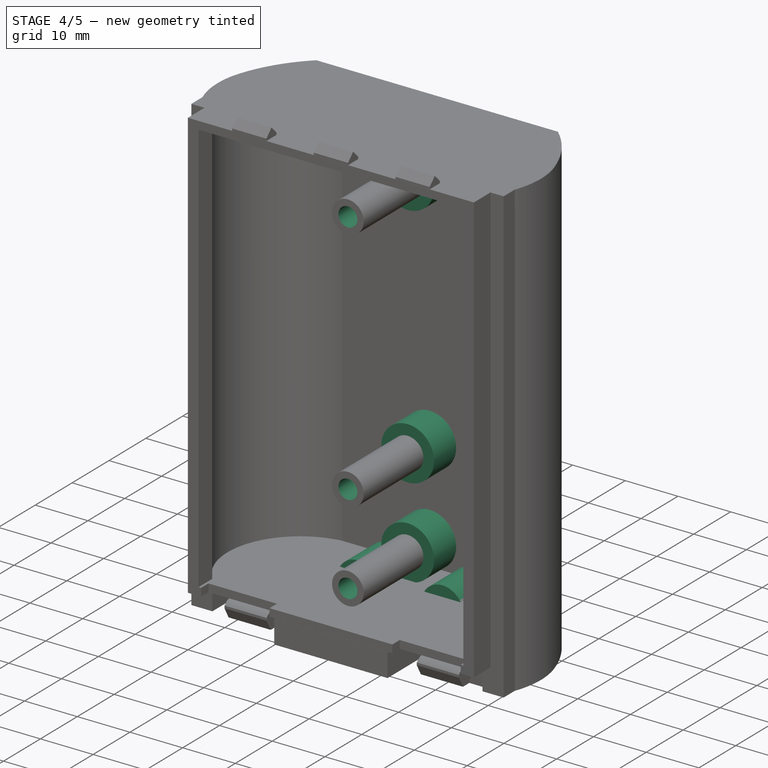
[diagram: stage 4 of 5 — iso view after this stage's code; geometry added in this stage tinted green]
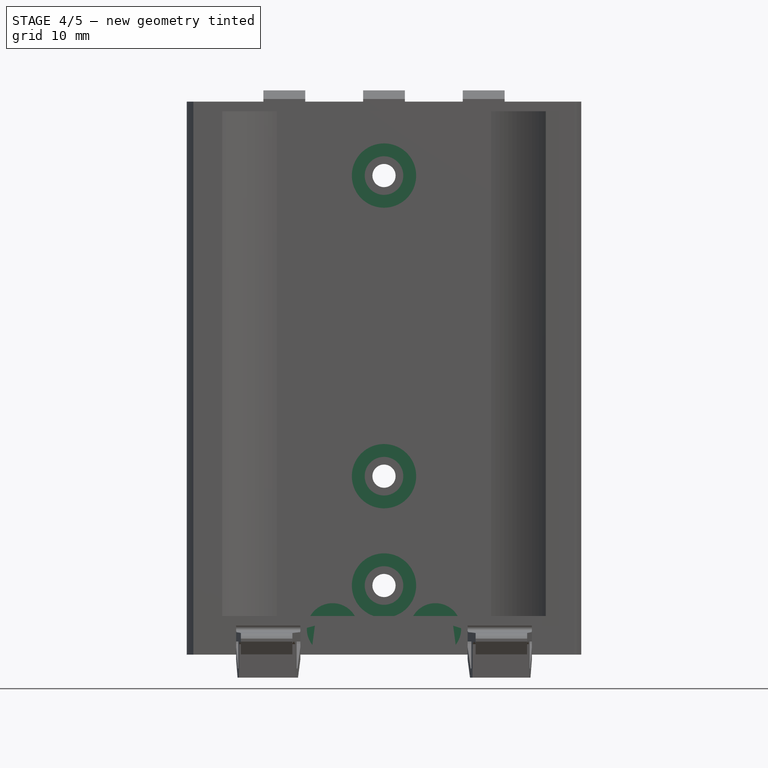
[diagram: stage 4 of 5 — front view after this stage's code; geometry added in this stage tinted green]
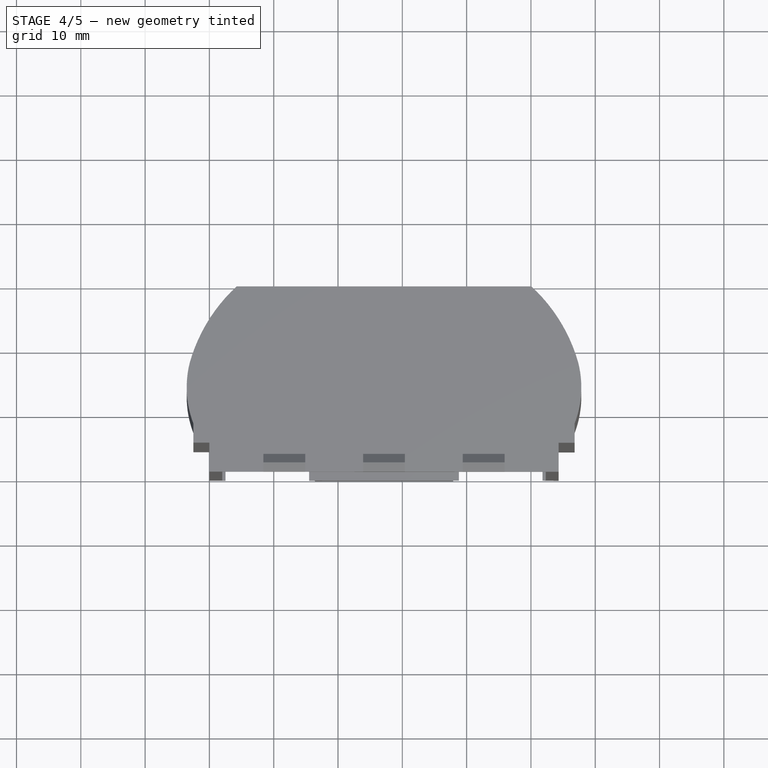
[diagram: stage 4 of 5 — top view after this stage's code; geometry added in this stage tinted green]
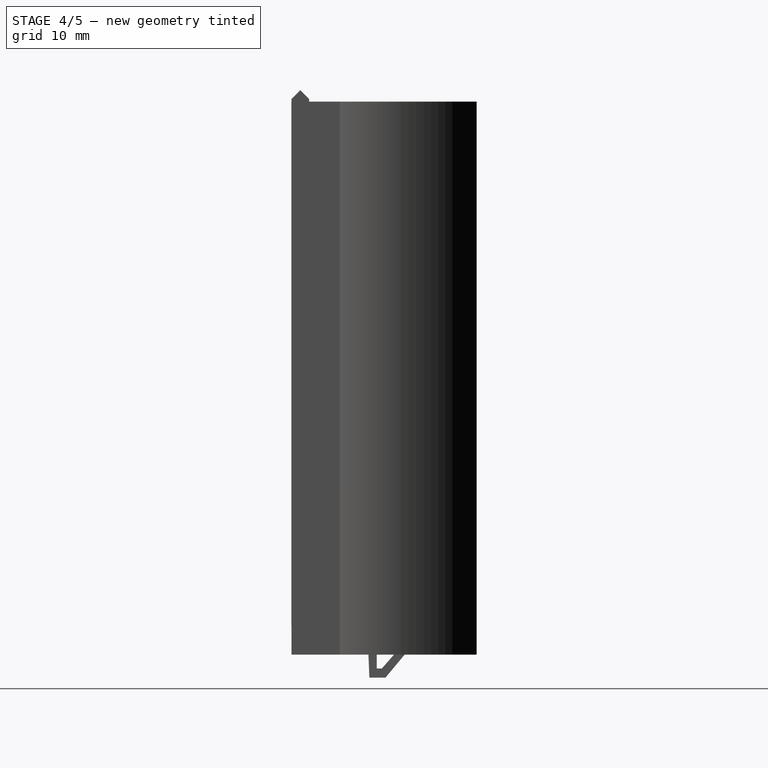
[diagram: stage 4 of 5 — right view after this stage's code; geometry added in this stage tinted green]
FEATURE [PartDesign::Pad] Pad007
  BaseFeature = -> Pad006
  Direction = (1,1,1)
  Length = 8
  Length2 = 100
  Profile = -> Sketch020
  Reversed = true
  Type = 0
  expr: Length = 8
FEATURE [PartDesign::Hole] Hole003
  BaseFeature = -> Pad007
  Depth = 25
  DepthType = 1
  Diameter = 3.6
  DrillForDepth = false
  DrillPoint = 1
  DrillPointAngle = 118
  HoleCutCountersinkAngle = 90
  HoleCutCustomValues = false
  HoleCutDepth = 0
  HoleCutDiameter = 6.1
  HoleCutType = 0
  ModelActualThread = false
  Profile = -> Sketch020
  Tapered = false
  TaperedAngle = 90
  ThreadAngle = 0
  ThreadClass = 0
  ThreadCutOffInner = 0
  ThreadCutOffOuter = 0
  ThreadDirection = 0
  ThreadFit = 2
  ThreadPitch = 0
  ThreadSize = 9
  ThreadType = 1
  Threaded = false
FEATURE [PartDesign::Hole] Hole004
  BaseFeature = -> Hole003
  Depth = 6
  DepthType = 0
  Diameter = 6
  DrillForDepth = false
  DrillPoint = 1
  DrillPointAngle = 89
  HoleCutCountersinkAngle = 90
  HoleCutCustomValues = false
  HoleCutDepth = 0
  HoleCutDiameter = 6.1
  HoleCutType = 0
  ModelActualThread = false
  Profile = -> Sketch020
  Tapered = false
  TaperedAngle = 90
  ThreadAngle = 0
  ThreadClass = 0
  ThreadCutOffInner = 0
  ThreadCutOffOuter = 0
  ThreadDirection = 0
  ThreadFit = 0
  ThreadPitch = 0
  ThreadSize = 0
  ThreadType = 0
  Threaded = false
  expr: Depth = 6
FEATURE [PartDesign::Line] DatumLine003  label="activeEnd"
  AttacherType = Attacher::AttachEngineLine
  Length = 20
  MapMode = 29
  Placement = pos=(0,-1.08e-14,80) rot=(0.57735,0.57735,0.57735;2.0944rad)
  ResizeMode = 0
  Support = -> [Pad005]
FEATURE [Sketcher::SketchObject] Sketch021
  ExternalGeometry = -> [DatumLine002,DatumLine001,DatumLine003]
  FullyConstrained = false
  MapMode = 5
  Placement = pos=(-5.96e-14,28.8,-3.77e-14) rot=(0,0.707107,0.707107;3.14159rad)
  Support = -> [DatumPlane]
  sketch-geometry (5):
    g0: Circle CenterX=-35.15 CenterY=-2 CenterZ=0 NormalX=0 NormalY=0 NormalZ=1 AngleXU=0 Radius=4
    g1: Circle CenterX=-19.15 CenterY=-2 CenterZ=0 NormalX=0 NormalY=0 NormalZ=1 AngleXU=0 Radius=4
    g2: GeomPoint X=-27.15 Y=-2 Z=0
    g3: GeomPoint X=-27.15 Y=-6 Z=0
    g4: GeomPoint X=-27.15 Y=-6 Z=0
  constraints (9):
    c: Equal(g0,g1)
    c: Radius(g0) = 4
    c: Distance(g0,g1) = 16
    c: Symmetric(g1,g0,g2)
    c: Horizontal(g0,g1)
    c: PointOnObject(g4,g-4)
    c: Coincident(g3,g4)
    c: Vertical(g2,g3)
    c: DistanceY(g3,g0) = 4
FEATURE [PartDesign::Pad] Pad008
  BaseFeature = -> Hole004
  Direction = (1,1,1)
  Length = 10
  Length2 = 100
  Profile = -> Sketch021
  Reversed = true
  Type = 0
FEATURE [PartDesign::Hole] Hole005
  BaseFeature = -> Pad008
  Depth = 8.5
  DepthType = 0
  Diameter = 3.8
  DrillForDepth = true
  DrillPoint = 1
  DrillPointAngle = 100
  HoleCutCountersinkAngle = 90
  HoleCutCustomValues = false
  HoleCutDepth = 4.14
  HoleCutDiameter = 6.1
  HoleCutType = 0
  ModelActualThread = false
  Profile = -> Sketch021
  Tapered = false
  TaperedAngle = 90
  ThreadAngle = 0
  ThreadClass = 0
  ThreadCutOffInner = 0
  ThreadCutOffOuter = 0
  ThreadDirection = 0
  ThreadFit = 0
  ThreadPitch = 0
  ThreadSize = 0
  ThreadType = 0
  Threaded = false
  expr: Diameter = 1.9 * 2
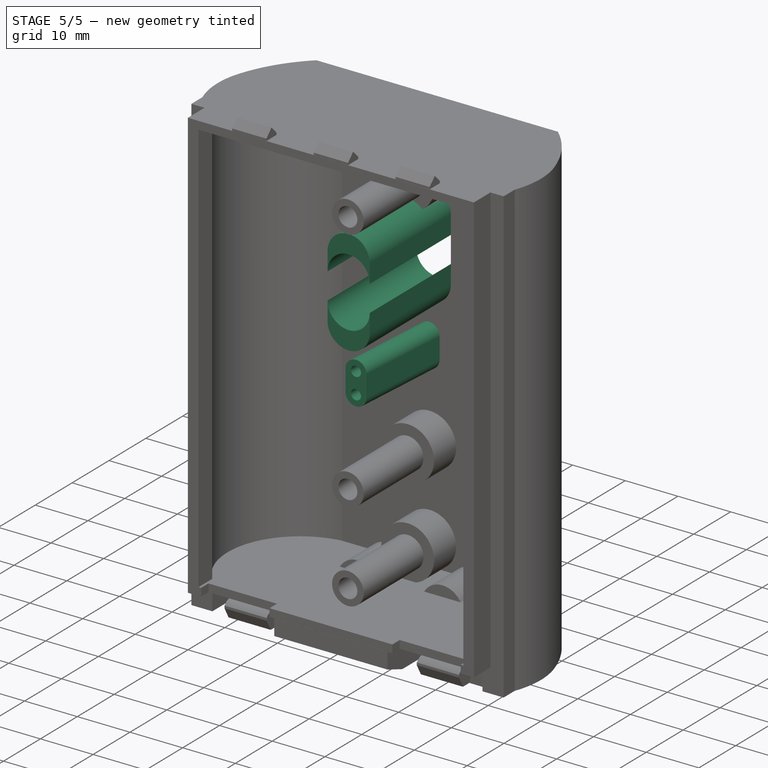
[diagram: stage 5 of 5 — iso view after this stage's code; geometry added in this stage tinted green]
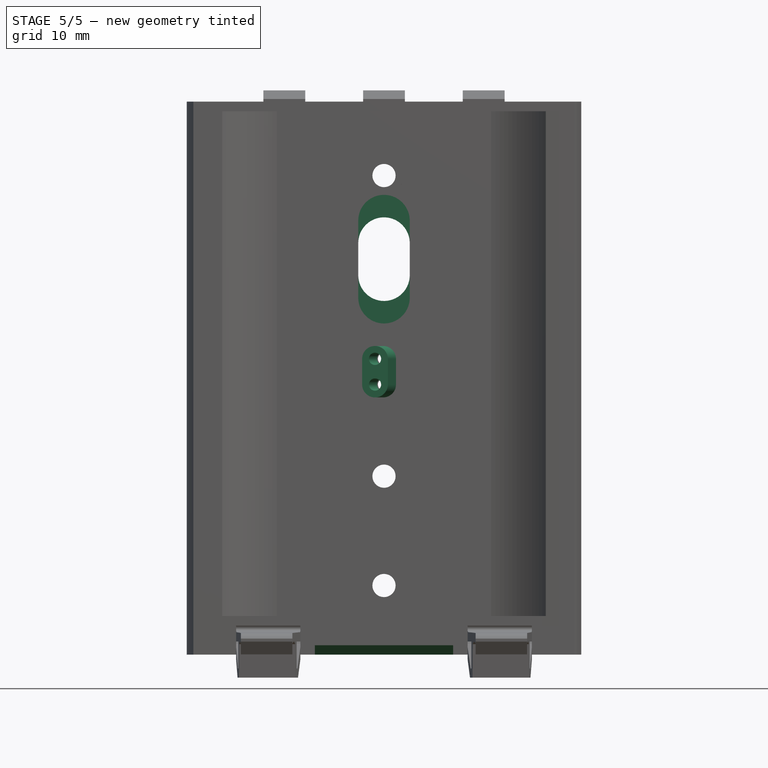
[diagram: stage 5 of 5 — front view after this stage's code; geometry added in this stage tinted green]
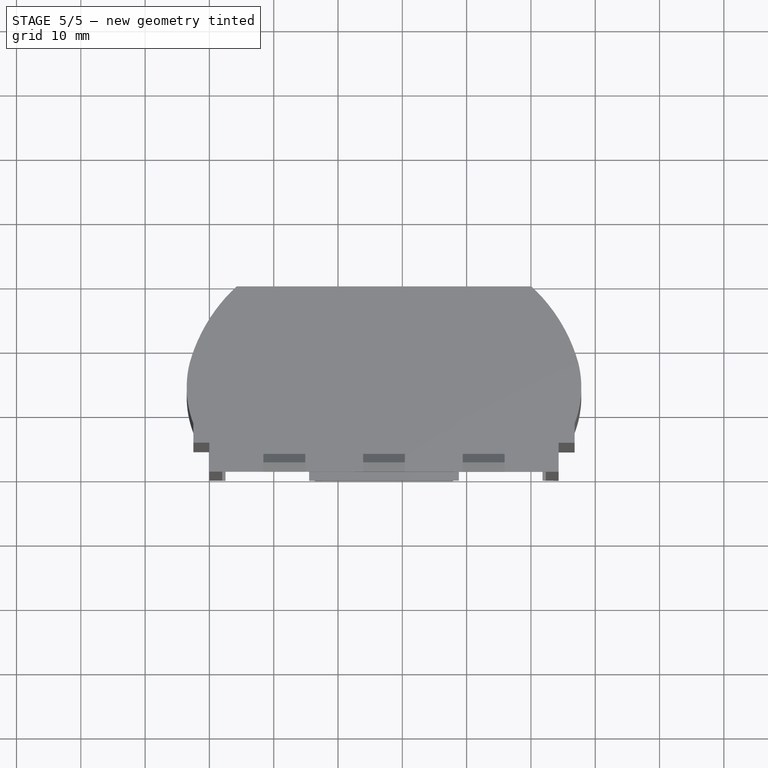
[diagram: stage 5 of 5 — top view after this stage's code; geometry added in this stage tinted green]
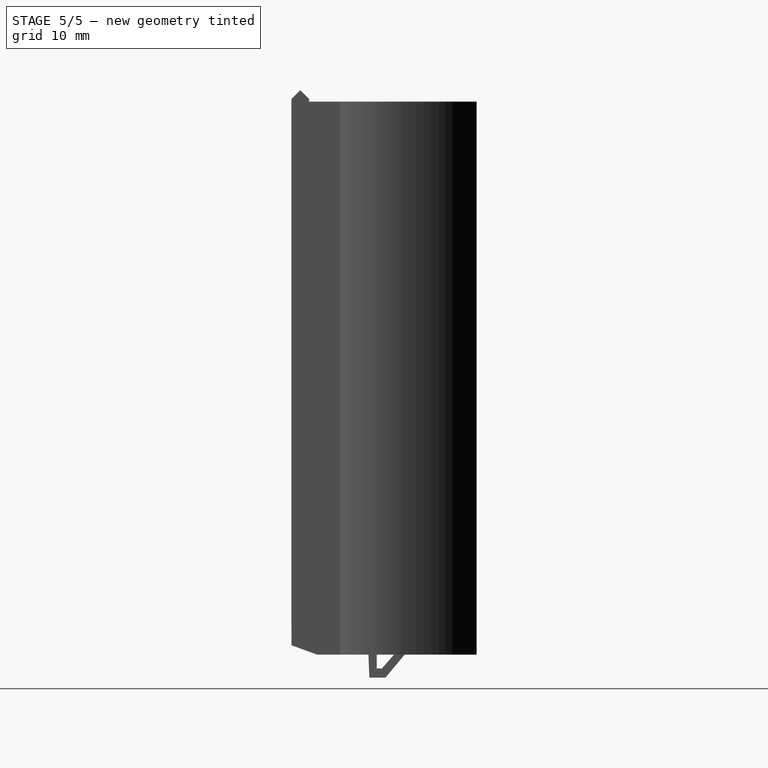
[diagram: stage 5 of 5 — right view after this stage's code; geometry added in this stage tinted green]
FEATURE [PartDesign::Pocket] Pocket001
  BaseFeature = -> Hole005
  Length = 5
  Length2 = 100
  Profile = -> Sketch022
  Type = 0
FEATURE [PartDesign::Chamfer] Chamfer
  Angle = 20
  Base = -> Pocket001 [Edge22]
  ChamferType = 2
  FlipDirection = false
  Size = 4
  Size2 = 1
  SupportTransform = false
FEATURE [Sketcher::SketchObject] Sketch
  ExternalGeometry = -> [DatumLine001,DatumLine]
  FullyConstrained = true
  MapMode = 5
  Placement = pos=(-5.96e-14,28.8,-3.77e-14) rot=(0,0.707107,0.707107;3.14159rad)
  Support = -> [DatumPlane,DatumLine]
  sketch-geometry (3):
    g0: GeomPoint X=-27.15 Y=80 Z=0
    g1: Circle CenterX=-27.15 CenterY=40 CenterZ=0 NormalX=0 NormalY=0 NormalZ=1 AngleXU=0 Radius=0.95
    g2: Circle CenterX=-27.15 CenterY=36 CenterZ=0 NormalX=0 NormalY=0 NormalZ=1 AngleXU=0 Radius=0.95
  constraints (9):
    c: PointOnObject(g0,g-3)
    c: PointOnObject(g0,g-4)
    c: Equal(g1,g2)
    c: Diameter(g1) = 1.9
    c: DistanceY(g2,g1) = 4
    c: PointOnObject(g1,g-3)
    c: Vertical(g1,g2)
    c: DistanceY(g-3,g-3) = 20000
    c: DistanceY(g1,g0) = 40
FEATURE [Sketcher::SketchObject] Sketch023
  ExternalGeometry = -> [DatumLine]
  FullyConstrained = false
  MapMode = 5
  Placement = pos=(-5.96e-14,28.8,-3.77e-14) rot=(0,0.707107,0.707107;3.14159rad)
  Support = -> [DatumPlane,DatumLine]
  sketch-geometry (7):
    g0: GeomPoint X=-27.15 Y=80 Z=0
    g1: ArcOfCircle CenterX=-27.15 CenterY=40 CenterZ=0 NormalX=0 NormalY=0 NormalZ=1 AngleXU=0 Radius=2 StartAngle=-9e-16 EndAngle=3.14159
    g2: ArcOfCircle CenterX=-27.15 CenterY=36 CenterZ=0 NormalX=0 NormalY=0 NormalZ=1 AngleXU=0 Radius=2 StartAngle=3.14159 EndAngle=6.28319
    g3: LineSegment StartX=-29.15 StartY=40 StartZ=0 EndX=-29.15 EndY=36 EndZ=0
    g4: LineSegment StartX=-25.15 StartY=36 StartZ=0 EndX=-25.15 EndY=40 EndZ=0
    g5: Circle CenterX=-27.15 CenterY=40 CenterZ=0 NormalX=0 NormalY=0 NormalZ=1 AngleXU=0 Radius=0.95
    g6: Circle CenterX=-27.15 CenterY=36 CenterZ=0 NormalX=0 NormalY=0 NormalZ=1 AngleXU=0 Radius=0.95
  constraints (17):
    c: PointOnObject(g0,g-3)
    c: Coincident(g3,g1)
    c: Coincident(g3,g2)
    c: Vertical(g3)
    c: Coincident(g4,g2)
    c: Coincident(g4,g1)
    c: Vertical(g4)
    c: Equal(g1,g2)
    c: Horizontal(g1,g1)
    c: DistanceX(g1,g1) = 4
    c: DistanceY(g2,g1) = 4
    c: DistanceY(g1,g0) = 40
    c: Horizontal(g1,g1)
    c: Coincident(g5,g1)
    c: Coincident(g6,g2)
    c: Equal(g5,g6)
    c: Diameter(g5) = 1.9
FEATURE [PartDesign::Pad] Pad
  BaseFeature = -> Chamfer
  Direction = (-0.07,-1,0)
  Length = 20
  Length2 = 100
  Profile = -> Sketch023
  Type = 0
  UseCustomVector = true
  expr: .Direction.z = 0
  expr: .Direction.y = -1
  expr: .Direction.x = -0.07000000000000001
FEATURE [PartDesign::Pocket] Pocket
  BaseFeature = -> Pad
  Length = 2
  Length2 = 100
  Profile = -> Sketch
  Type = 0
FEATURE [Sketcher::SketchObject] Sketch024
  ExternalGeometry = -> [DatumLine,DatumLine001]
  FullyConstrained = true
  MapMode = 5
  Placement = pos=(-5.96e-14,28.8,-3.77e-14) rot=(0,0.707107,0.707107;3.14159rad)
  Support = -> [DatumPlane]
  sketch-geometry (12):
    g0: ArcOfCircle CenterX=-27.15 CenterY=58 CenterZ=0 NormalX=0 NormalY=0 NormalZ=1 AngleXU=0 Radius=4 StartAngle=0 EndAngle=3.14159
    g1: ArcOfCircle CenterX=-27.15 CenterY=53 CenterZ=0 NormalX=0 NormalY=0 NormalZ=1 AngleXU=0 Radius=4 StartAngle=3.14159 EndAngle=6.28319
    g2: LineSegment StartX=-31.15 StartY=58 StartZ=0 EndX=-31.15 EndY=53 EndZ=0
    g3: LineSegment StartX=-23.15 StartY=53 StartZ=0 EndX=-23.15 EndY=58 EndZ=0
    g4: GeomPoint X=-27.15 Y=80 Z=0
    g5: GeomPoint X=-27.15 Y=80 Z=0
    g6: ArcOfCircle CenterX=-27.15 CenterY=49.5 CenterZ=0 NormalX=0 NormalY=0 NormalZ=1 AngleXU=0 Radius=4 StartAngle=3.14159 EndAngle=6.28319
    g7: ArcOfCircle CenterX=-27.15 CenterY=61.5 CenterZ=0 NormalX=0 NormalY=0 NormalZ=1 AngleXU=0 Radius=4 StartAngle=2e-16 EndAngle=3.14159
    g8: LineSegment StartX=-31.15 StartY=49.5 StartZ=0 EndX=-31.15 EndY=53 EndZ=0
    g9: LineSegment StartX=-23.15 StartY=49.5 StartZ=0 EndX=-23.15 EndY=53 EndZ=0
    g10: LineSegment StartX=-31.15 StartY=61.5 StartZ=0 EndX=-31.15 EndY=58 EndZ=0
    g11: LineSegment StartX=-23.15 StartY=61.5 StartZ=0 EndX=-23.15 EndY=58 EndZ=0
  constraints (35):
    c: Vertical(g0,g1)
    c: Horizontal(g0,g0)
    c: Horizontal(g1,g1)
    c: Horizontal(g1,g1)
    c: Horizontal(g0,g0)
    c: Vertical(g1,g0)
    c: Coincident(g2,g0)
    c: Coincident(g2,g1)
    c: Coincident(g3,g1)
    c: Coincident(g3,g0)
    c: Diameter(g0) = 8
    c: DistanceY(g2,g2) = 5
    c: PointOnObject(g4,g-3)
    c: PointOnObject(g5,g-4)
    c: Coincident(g4,g5)
    c: DistanceY(g0,g4) = 22
    c: Vertical(g4,g0)
    c: PointOnObject(g6,g-4)
    c: Horizontal(g6,g6)
    c: Horizontal(g6,g6)
    c: Horizontal(g7,g7)
    c: Horizontal(g7,g7)
    c: Vertical(g0,g7)
    c: Vertical(g0,g7)
    c: Coincident(g8,g6)
    c: Coincident(g8,g1)
    c: Vertical(g8)
    c: Coincident(g9,g6)
    c: Coincident(g9,g1)
    c: Coincident(g10,g7)
    c: Coincident(g10,g0)
    c: Coincident(g11,g7)
    c: Coincident(g11,g0)
    c: Equal(g10,g8)
    c: DistanceY(g0,g7) = 3.5
FEATURE [PartDesign::Pad] Pad009
  BaseFeature = -> Pocket
  Direction = (1,1,1)
  Length = 24
  Length2 = 100
  Profile = -> Sketch024
  Reversed = true
  Type = 0
FEATURE [PartDesign::Body] Pocket001Body
  BaseFeature = -> Fusion007
  Group = -> [BaseFeature001,Sketch018,Pad005,Sketch019,Pad006,Sketch020,Pad007,Hole003,Hole004,Sketch021,Pad008,Hole005,Sketch022,Pocket001,DatumPlane,DatumLine,DatumLine001,DatumLine002,Chamfer,DatumLine003,Sketch,Sketch023,Pad,Pocket,Sketch024,Pad009]
  Origin = -> Origin002
  Tip = -> Pad009
FEATURE [App::Part] Part
  Group = -> [Pocket001Body]
  Origin = -> Origin001
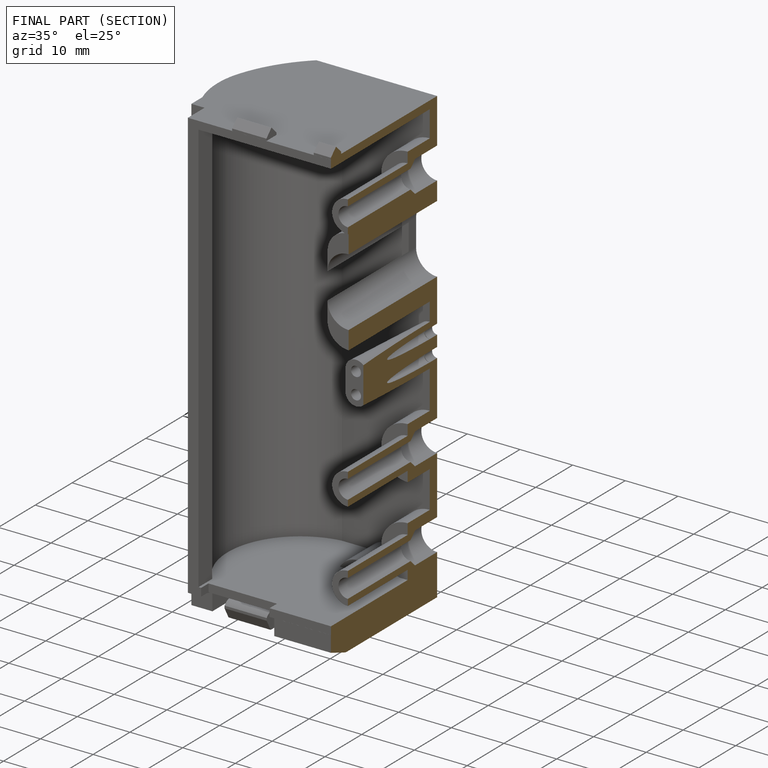
[diagram: finished part — half-section view (interior)]
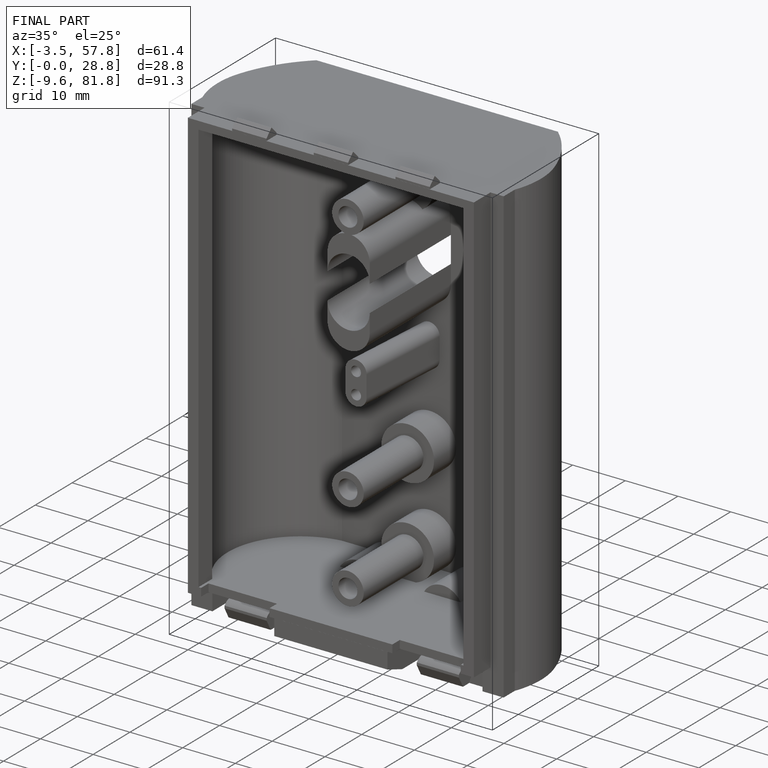
[diagram: finished part — iso view with bounding-box wireframe]
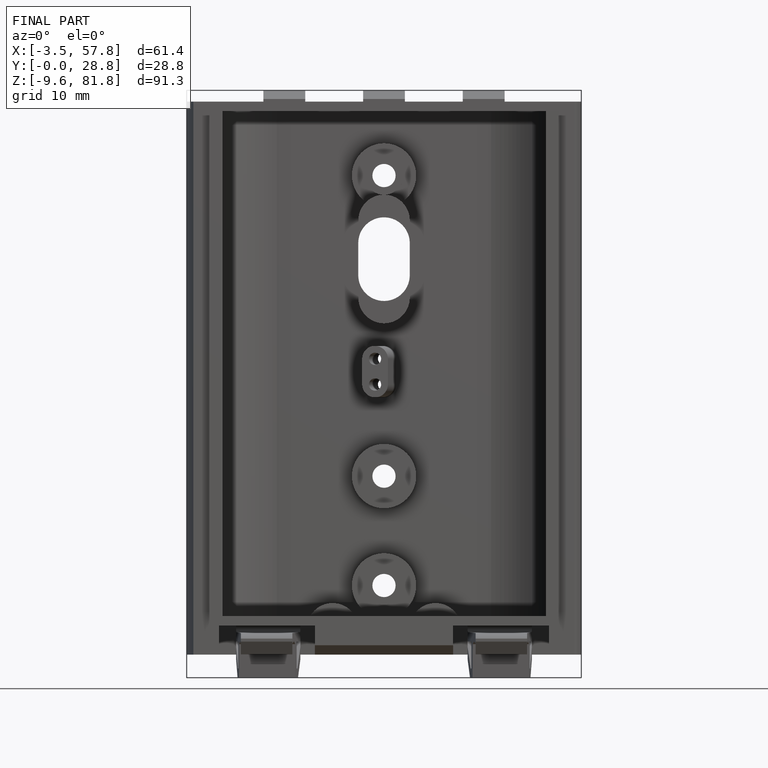
[diagram: finished part — front view with bounding-box wireframe]
